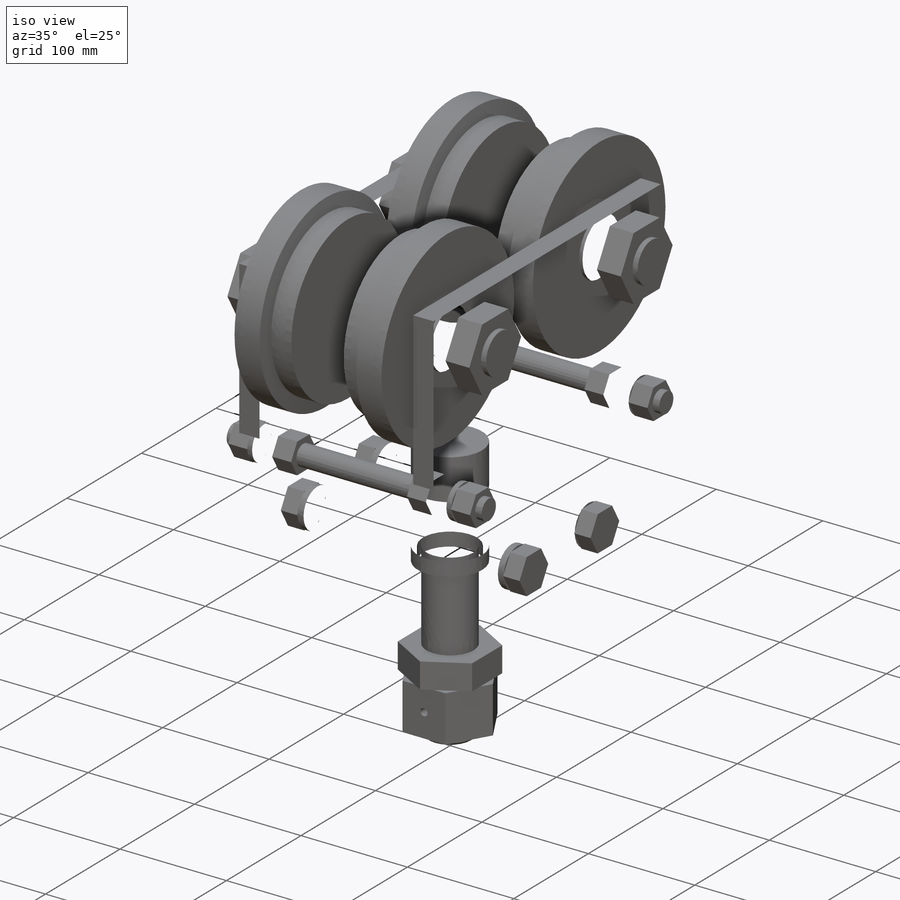
[diagram: iso view]
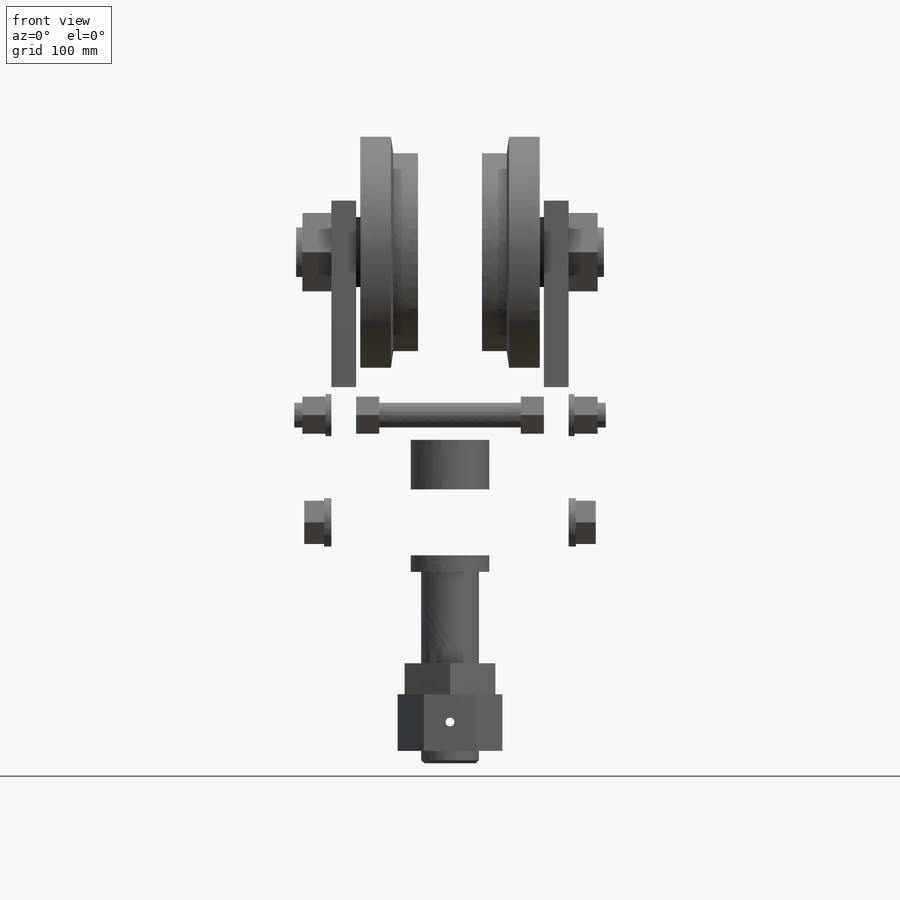
[diagram: front view]
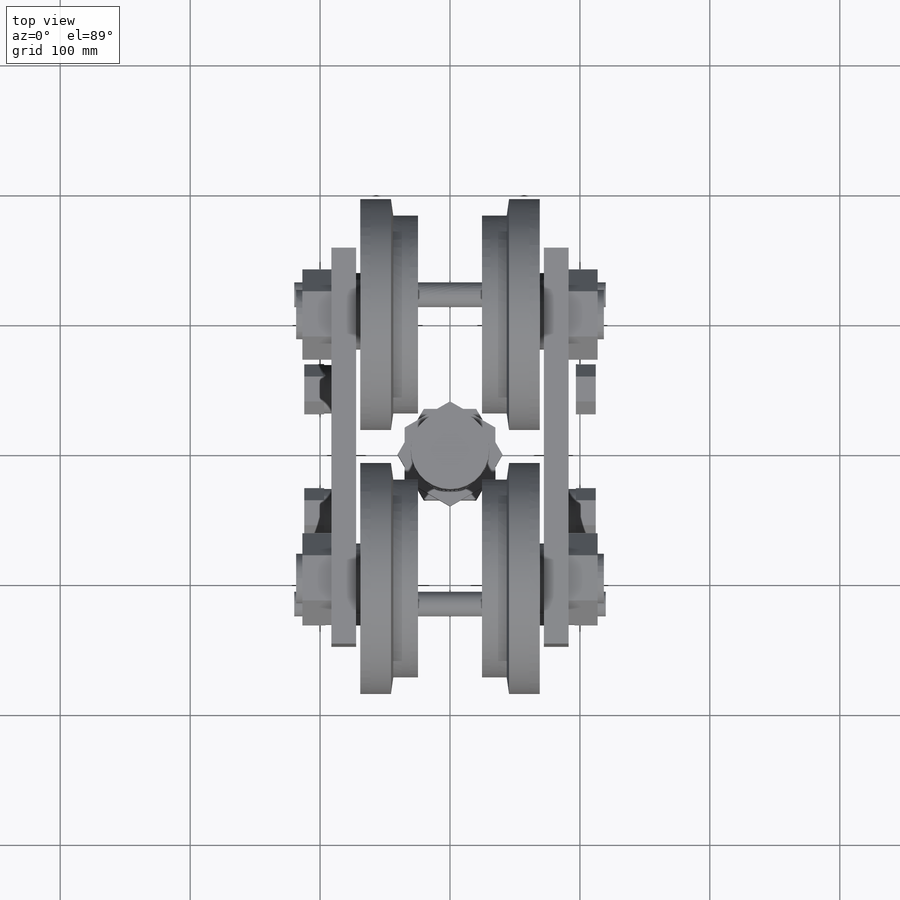
[diagram: top view]
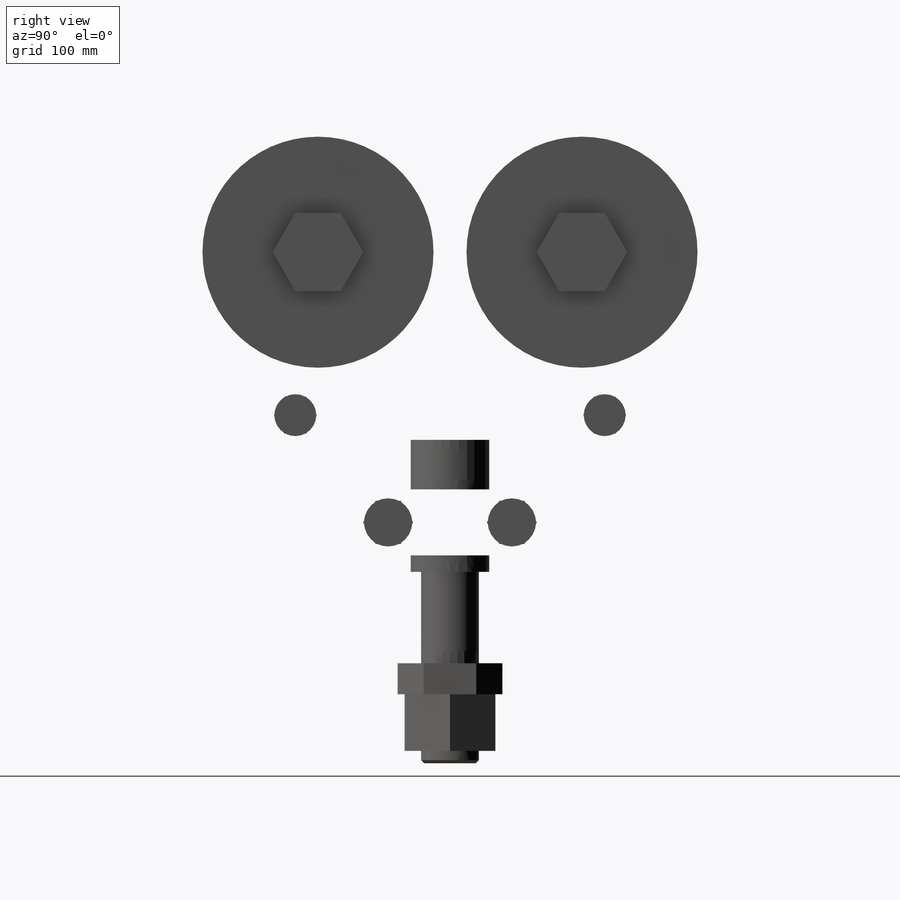
[diagram: right view]
SOLIDWORKS PART (.sldprt)
format: sldprt  version: not decoded by parser v0  size: 939,008 bytes
history: native  units: mm
features: sketch x18, extrude x16, plane x13, mirror x7, material x1, chamfer x1, cut_extrude x1, revolve x1 (+11 scaffold rows collapsed)
feature tree (69):
  scaffold x11  (default folders/planes/origin — collapsed)
  material  "Material <not specified>"
  plane  "Z PLANE"  Offset=0mm
  plane  "YOKE BOTTOM"  Offset=0mm
  plane  "X PLANE"  Offset=0mm
  sketch  "YOKE CROSS SECTION"  dims[D1=50.8mm D2=152.4mm]
  plane  "1/2 YOKE LENGTH (A)"  Offset=72.23125mm
  plane  "WHEEL LOCATION"  Offset=101.6mm
  extrude  "YOKE"  [1 undecoded]
  sketch  "SIDEPLATE PROFILE"  dims[D1=76.2mm D2=76.2mm D3=76.2mm D4=76.2mm D5=129.54mm D6=143.51mm D7=129.54mm]
  plane  "WHEEL HEIGHT"  Offset=233.3625mm
  plane  "YOKE SCREW LOCATION Z"  Offset=47.625mm
  plane  "YOKE SCREW LOCATION Y"  Offset=25.4mm
  extrude  "SIDEPLATE"  Depth=19.05mm
  sketch  "WHEEL PIN NUT PROFILE"  dims[D1=60.325mm D2=47.625mm]
  extrude  "WHEEL PIN NUT"  Depth=22.352mm
  sketch  "WHEEL PIN PROJECTION PROFILE"  dims[D1=38.1mm D2=47.625mm]
  extrude  "WHEEL PIN PROJECTION"  Depth=4.7625mm
  sketch  "LOCKNUTS PROFILE"  dims[D1=37.084mm]
  extrude  "LOCKNUTS"  Depth=5.5626mm
  sketch  "SCREWS PROFILE"  dims[D1=33.3375mm]
  extrude  "SCREWS"  Depth=15.3416mm
  sketch  "PROFILE"  dims[D1=60.325mm]
  extrude  "KING BOLT HEAD"  Depth=38.1mm
  mirror  "Mirror1"
  mirror  "Mirror YOKE SCREWS"
  mirror  "Mirror SIDE 1"
  plane  "TOP OF NUT"  Offset=83.052101mm
  sketch  "DIA."  dims[D1=44.45mm]
  extrude  "KING BOLT"  [1 undecoded]
  sketch  "KING BOLT JAN NUT PROFILE"  dims[D1=69.85mm]
  extrude  "KING BOLT JAM NUT"  Depth=23.8125mm
  sketch  "KING BOLT NUT PROFILE"  dims[c1.D1=69.85mm c1.D2=44.45mm c2.D1=0.0mm]
  extrude  "KING BOLT NUT"  Depth=43.6372mm
  sketch  "Sketch5"
  extrude  "EXTENDED KING BOLT"  Depth=9.525mm
  chamfer  "Chamfer1"  Distance=2.38125mm Angle=45deg
  plane  "MOUNTING REF PLANE"  Offset=34.925mm
  plane  "THREADED ROD LOCATION"  Offset=119.0625mm
  plane  "THREADED ROD HEIGHT"  Offset=107.95mm
  sketch  "Sketch6"  dims[D1=19.05mm D2=~20.456123mm]
  extrude  "THREADED ROD"  Depth=47.625mm
  sketch  "Sketch7"  dims[D1=28.575mm]
  extrude  "THREADED ROD NUTS INNER "  [1 undecoded]
  sketch  "Sketch8"  dims[D1=32.258mm]
  extrude  "THREADED ROD LOCKWASHER "  Depth=4.572mm
  sketch  "Sketch9"
  extrude  "THREADED ROD NUT OUTER"  [1 undecoded]
  mirror  "Mirror2"
  mirror  "Mirror3"
  sketch  "Sketch10"  dims[D1=6.731mm D2=22.225mm]
  cut_extrude  "COTTER PIN HOLE"  [1 undecoded]
  sketch  "Sketch11"  dims[c1.D5=88.9mm c1.D1=53.975mm c1.D2=3.175mm c1.D3=~13.863518mm c1.D4=15.875mm c1.D6=~67.621853mm c1.D7=76.2mm c1.D8=88.9mm c1.D9=26.9875mm c2.D1=~47.624952mm c2.D2=~3.174997mm c2.D3=~26.780019mm c2.D4=~28.574971mm c2.D5=26.9875mm c2.D6=88.9mm c2.D7=~76.128247mm]
  revolve  "WHEEL"  Angle=360deg
  mirror  "Mirror4"
  mirror  "Mirror5"
  sketch  "Sketch12"  dims[D1=50.8mm D2=60.325mm]
  extrude  "SPACER"  Depth=12.7mm
  plane  "TREAD OF TRACK"  Offset=157.1625mm
decode coverage: 30 of 44 modeling features carry decoded parameters
note: ~ marks probable driven/reference dimensions
note: 5 parameter values undecoded
summary: no parameter record found for 5 features
note: suppression state not decoded; provenance and decode notes live in map.json
